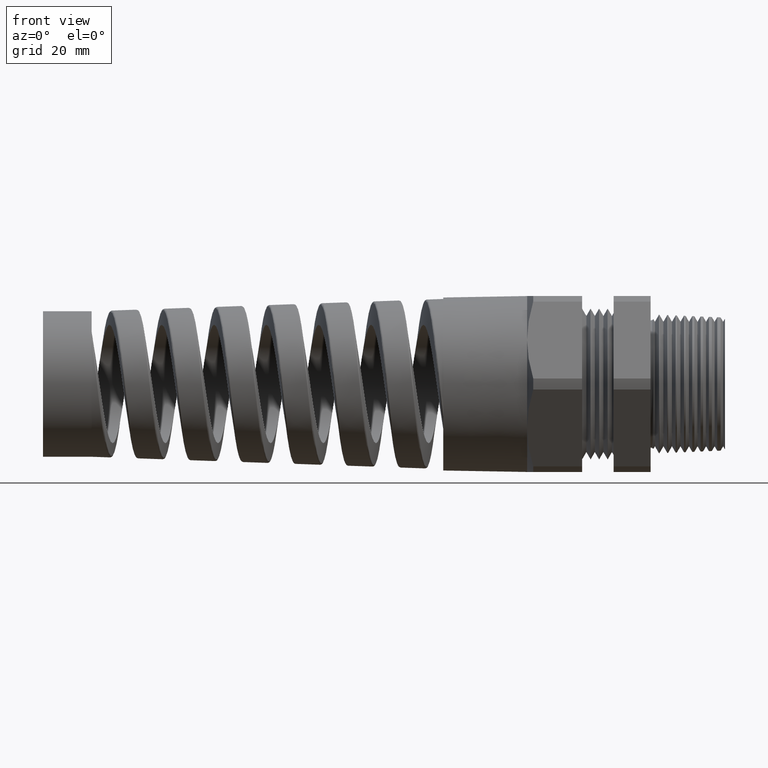
[diagram: clean part render]
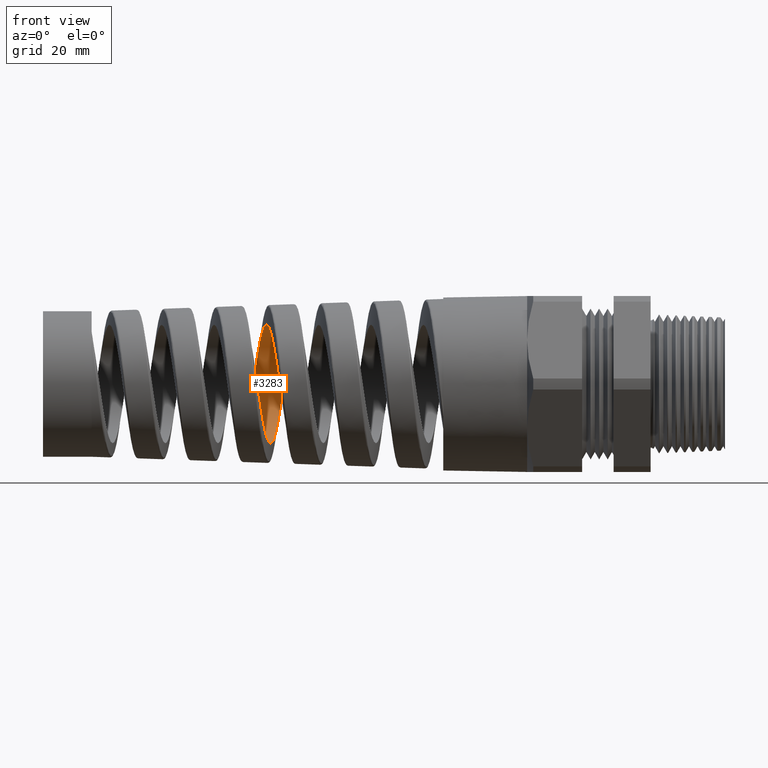
[diagram: same view with one face highlighted and labeled with its STEP entity id]
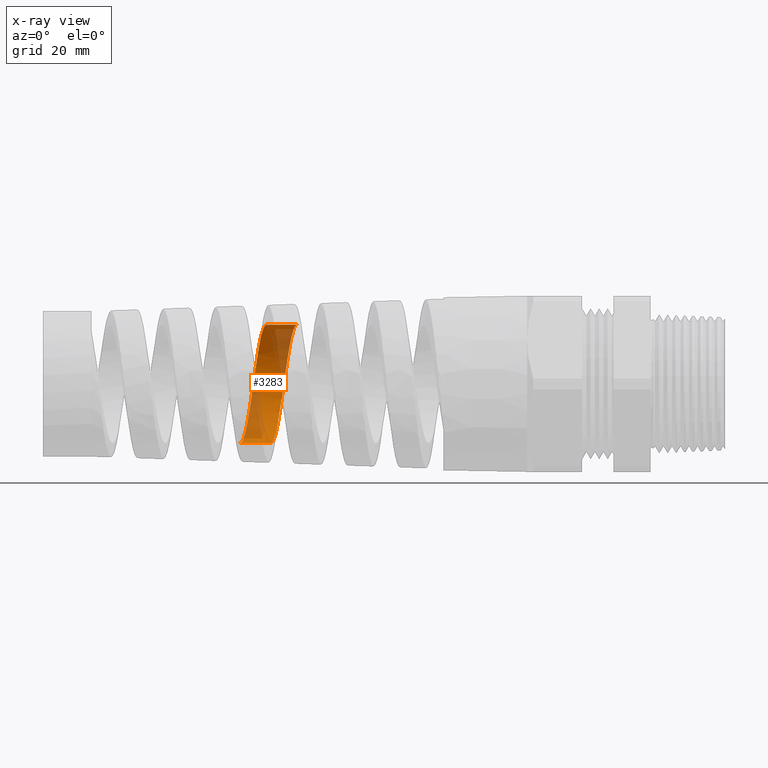
[diagram: x-ray of the same camera — body ghosted, the highlighted face saturated]
A machine part, front view. The second image highlights one B-rep face of the part: STEP entity #3283.
The next image is the same camera in x-ray: the body ghosted, the highlighted face saturated — about 39% of this face is hidden behind the body in this view.
In plain terms, the highlighted cylindrical surface (partial cylindrical patch) has radius 11.1145 mm, axis along (1, 0, 0).
Its self-contained STEP definition (entity closure, byte-faithful):
#1404 = VERTEX_POINT ( 'NONE', #6652 ) ;
#1410 = VERTEX_POINT ( 'NONE', #6597 ) ;
#3142 = VERTEX_POINT ( 'NONE', #10913 ) ;
#3149 = EDGE_CURVE ( 'NONE', #3142, #3151, #10905, .T. ) ;
#3151 = VERTEX_POINT ( 'NONE', #10998 ) ;
#3159 = EDGE_CURVE ( 'NONE', #1404, #1410, #11053, .T. ) ;
#3268 = EDGE_LOOP ( 'NONE', ( #3349, #3339, #3285, #3313 ) ) ;
#3283 = ADVANCED_FACE ( 'NONE', ( #11341 ), #11335, .F. ) ;
#3285 = ORIENTED_EDGE ( 'NONE', *, *, #3159, .T. ) ;
#3313 = ORIENTED_EDGE ( 'NONE', *, *, #3314, .F. ) ;
#3314 = EDGE_CURVE ( 'NONE', #3151, #1410, #11473, .T. ) ;
#3336 = EDGE_CURVE ( 'NONE', #1404, #3142, #11650, .T. ) ;
#3339 = ORIENTED_EDGE ( 'NONE', *, *, #3336, .F. ) ;
#3349 = ORIENTED_EDGE ( 'NONE', *, *, #3149, .F. ) ;
#6597 = CARTESIAN_POINT ( 'NONE',  ( -2.807672832263372600, -2.795875681015769600E-016, -0.4375801833083609600 ) ) ;
#6652 = CARTESIAN_POINT ( 'NONE',  ( -3.031966667347661700, -1.157351671028355200E-012, -0.4375801833083609600 ) ) ;
#10905 = LINE ( 'NONE', #11001, #11000 ) ;
#10913 = CARTESIAN_POINT ( 'NONE',  ( -2.838629872620518600, 1.110240098675117400E-014, 0.4375801833083615700 ) ) ;
#10998 = CARTESIAN_POINT ( 'NONE',  ( -2.613139241122711900, -6.691640317918164300E-014, 0.4375801833083615100 ) ) ;
#10999 = DIRECTION ( 'NONE',  ( 1.000000000000000000, 0.0000000000000000000, 0.0000000000000000000 ) ) ;
#11000 = VECTOR ( 'NONE', #10999, 39.37007874015748100 ) ;
#11001 = CARTESIAN_POINT ( 'NONE',  ( 0.4924815508901369000, 5.358811708588965500E-017, 0.4375801833083611800 ) ) ;
#11050 = DIRECTION ( 'NONE',  ( 1.000000000000000000, 0.0000000000000000000, 0.0000000000000000000 ) ) ;
#11051 = VECTOR ( 'NONE', #11050, 39.37007874015748100 ) ;
#11052 = CARTESIAN_POINT ( 'NONE',  ( 0.4924815508901369000, 0.0000000000000000000, -0.4375801833083611800 ) ) ;
#11053 = LINE ( 'NONE', #11052, #11051 ) ;
#11331 = DIRECTION ( 'NONE',  ( 0.0000000000000000000, 0.0000000000000000000, -1.000000000000000000 ) ) ;
#11332 = DIRECTION ( 'NONE',  ( 1.000000000000000000, 0.0000000000000000000, 0.0000000000000000000 ) ) ;
#11333 = CARTESIAN_POINT ( 'NONE',  ( 0.4924815508901369000, 0.0000000000000000000, 0.0000000000000000000 ) ) ;
#11334 = AXIS2_PLACEMENT_3D ( 'NONE', #11333, #11332, #11331 ) ;
#11335 = CYLINDRICAL_SURFACE ( 'NONE', #11334, 0.4375801833083611800 ) ;
#11341 = FACE_OUTER_BOUND ( 'NONE', #3268, .T. ) ;
#11455 = CARTESIAN_POINT ( 'NONE',  ( -2.673943279708155300, 0.3644553410325600500, 0.2434280205106386900 ) ) ;
#11456 = CARTESIAN_POINT ( 'NONE',  ( -2.669910389161955800, 0.3474744645753342600, 0.2663505491012353500 ) ) ;
#11457 = CARTESIAN_POINT ( 'NONE',  ( -2.665860037810033200, 0.3293333747774500600, 0.2884798897603439400 ) ) ;
#11458 = CARTESIAN_POINT ( 'NONE',  ( -2.663817642048238900, 0.3196387218226093300, 0.2991912217825463700 ) ) ;
#11459 = CARTESIAN_POINT ( 'NONE',  ( -2.657697437803621100, 0.2890560466967950800, 0.3297795477527077400 ) ) ;
#11460 = CARTESIAN_POINT ( 'NONE',  ( -2.653678691738002200, 0.2669732231774446500, 0.3478730654776477400 ) ) ;
#11461 = CARTESIAN_POINT ( 'NONE',  ( -2.647622242086508800, 0.2314005243280079800, 0.3716634268440999800 ) ) ;
#11462 = CARTESIAN_POINT ( 'NONE',  ( -2.645598931043411400, 0.2191319623625504200, 0.3790312980187986500 ) ) ;
#11463 = CARTESIAN_POINT ( 'NONE',  ( -2.641524754582273500, 0.1937529582512597900, 0.3926109180544564700 ) ) ;
#11464 = CARTESIAN_POINT ( 'NONE',  ( -2.639476641480146900, 0.1806531993436134600, 0.3988057426852693000 ) ) ;
#11465 = CARTESIAN_POINT ( 'NONE',  ( -2.633396789773852800, 0.1409503058000684500, 0.4152471025180795000 ) ) ;
#11466 = CARTESIAN_POINT ( 'NONE',  ( -2.629383356034304100, 0.1136716093560272300, 0.4235266664750928500 ) ) ;
#11467 = CARTESIAN_POINT ( 'NONE',  ( -2.623305242008179500, 0.07155678931911742300, 0.4319270268433628700 ) ) ;
#11469 = CARTESIAN_POINT ( 'NONE',  ( -2.621259364263914800, 0.05724498533232455500, 0.4340586976099883900 ) ) ;
#11470 = CARTESIAN_POINT ( 'NONE',  ( -2.617181603483568000, 0.02857241836257352200, 0.4368839184789152200 ) ) ;
#11471 = CARTESIAN_POINT ( 'NONE',  ( -2.615158021695545900, 0.01426935030650067600, 0.4375801833083632400 ) ) ;
#11472 = CARTESIAN_POINT ( 'NONE',  ( -2.613139241122711900, -6.691640317918164300E-014, 0.4375801833083615100 ) ) ;
#11473 = B_SPLINE_CURVE_WITH_KNOTS ( 'NONE', 3,
 ( #11472, #11471, #11470, #11469, #11467, #11466, #11465, #11464, #11463, #11462, #11461, #11460, #11459, #11458, #11457, #11456, #11455, #11541, #11540, #11539, #11538, #11537, #11536, #11535, #11534, #11533, #11532, #11531, #11530, #11529, #11528, #11527, #11526, #11525, #11524, #11523, #11522, #11521, #11520, #11519, #11518, #11517, #11516, #11515, #11514, #11513, #11512 ),
 .UNSPECIFIED., .F., .F.,
 ( 4, 2, 2, 2, 2, 2, 2, 2, 1, 2, 2, 2, 2, 2, 2, 2, 2, 2, 2, 2, 2, 2, 2, 4 ),
 ( 0.2461000974137510800, 0.2471969352347336800, 0.2482937730557162900, 0.2504874486976815300, 0.2515842865186641600, 0.2526811243396467300, 0.2548747999816119400, 0.2559716378025945800, 0.2570684756235771500, 0.2581653134445597900, 0.2592621512655423600, 0.2614558269075075700, 0.2625526647284901500, 0.2636495025494727800, 0.2658431781914379900, 0.2669400160124205700, 0.2680368538334032000, 0.2702305294753683500, 0.2724242051173335600, 0.2735210429383161400, 0.2746178807592987700, 0.2768115564012639800, 0.2790052320432291300, 0.2811989076851943400 ),
 .UNSPECIFIED. ) ;
#11512 = CARTESIAN_POINT ( 'NONE',  ( -2.807672832263372600, -2.795875681015769600E-016, -0.4375801833083609600 ) ) ;
#11513 = CARTESIAN_POINT ( 'NONE',  ( -2.803607762248677900, 0.02872124390136605200, -0.4375801833083611800 ) ) ;
#11514 = CARTESIAN_POINT ( 'NONE',  ( -2.799590814173677200, 0.05709967144915616100, -0.4347788572350065300 ) ) ;
#11515 = CARTESIAN_POINT ( 'NONE',  ( -2.791505033385405000, 0.1131604506087371400, -0.4236599339047856800 ) ) ;
#11516 = CARTESIAN_POINT ( 'NONE',  ( -2.787400085736983200, 0.1410579036183789700, -0.4152056754304241900 ) ) ;
#11517 = CARTESIAN_POINT ( 'NONE',  ( -2.779310177048935200, 0.1938617894714848300, -0.3933328001397292700 ) ) ;
#11518 = CARTESIAN_POINT ( 'NONE',  ( -2.775294173260497200, 0.2190207856655433400, -0.3799093411971437000 ) ) ;
#11519 = CARTESIAN_POINT ( 'NONE',  ( -2.769199544618875300, 0.2548525690615755000, -0.3559954826700039700 ) ) ;
#11520 = CARTESIAN_POINT ( 'NONE',  ( -2.767148183466805900, 0.2665143015144025300, -0.3473506724378036500 ) ) ;
#11521 = CARTESIAN_POINT ( 'NONE',  ( -2.763086590672521000, 0.2887004445276953300, -0.3291419388109259600 ) ) ;
#11522 = CARTESIAN_POINT ( 'NONE',  ( -2.761066968281428800, 0.2992831606396638100, -0.3195453244018675600 ) ) ;
#11523 = CARTESIAN_POINT ( 'NONE',  ( -2.755013650339742400, 0.3295277901402681200, -0.2893107039343363300 ) ) ;
#11524 = CARTESIAN_POINT ( 'NONE',  ( -2.750981237259825900, 0.3477293092156310500, -0.2671990032910812600 ) ) ;
#11525 = CARTESIAN_POINT ( 'NONE',  ( -2.742806860143962600, 0.3798388181248171200, -0.2191653533131307200 ) ) ;
#11526 = CARTESIAN_POINT ( 'NONE',  ( -2.738783150130659600, 0.3932809352918996700, -0.1939582408116075600 ) ) ;
#11527 = CARTESIAN_POINT ( 'NONE',  ( -2.732728302834671400, 0.4096666948386392700, -0.1544439544586343700 ) ) ;
#11528 = CARTESIAN_POINT ( 'NONE',  ( -2.730707528244782800, 0.4144945512280970900, -0.1409864463987044700 ) ) ;
#11529 = CARTESIAN_POINT ( 'NONE',  ( -2.726641355214428400, 0.4228513751711251400, -0.1134884380974758000 ) ) ;
#11530 = CARTESIAN_POINT ( 'NONE',  ( -2.724590798247080500, 0.4263794723513191800, -0.09941146988692710400 ) ) ;
#11531 = CARTESIAN_POINT ( 'NONE',  ( -2.718503366763587200, 0.4347709354047545300, -0.05721330619193578500 ) ) ;
#11532 = CARTESIAN_POINT ( 'NONE',  ( -2.714486937747546200, 0.4375644626025220800, -0.02884054132670062600 ) ) ;
#11533 = CARTESIAN_POINT ( 'NONE',  ( -2.708414971551127400, 0.4375879453348391300, 0.01406099765063110200 ) ) ;
#11534 = CARTESIAN_POINT ( 'NONE',  ( -2.706377234980444700, 0.4368918084916917900, 0.02846435203401966400 ) ) ;
#11535 = CARTESIAN_POINT ( 'NONE',  ( -2.702293926259734300, 0.4340670682649382900, 0.05718786507414804600 ) ) ;
#11536 = CARTESIAN_POINT ( 'NONE',  ( -2.700268127192778400, 0.4319569697254903000, 0.07136846619436473800 ) ) ;
#11537 = CARTESIAN_POINT ( 'NONE',  ( -2.694207136923372200, 0.4235999524515450300, 0.1133797003699059800 ) ) ;
#11538 = CARTESIAN_POINT ( 'NONE',  ( -2.690187873850768500, 0.4153449995690645100, 0.1406846082284525800 ) ) ;
#11539 = CARTESIAN_POINT ( 'NONE',  ( -2.684082892779006400, 0.3988543217807344300, 0.1805504071715690100 ) ) ;
#11540 = CARTESIAN_POINT ( 'NONE',  ( -2.682033483891568700, 0.3926536803663556700, 0.1936618900229300200 ) ) ;
#11541 = CARTESIAN_POINT ( 'NONE',  ( -2.677978044180873200, 0.3791391765474438900, 0.2189413737954154200 ) ) ;
#11629 = CARTESIAN_POINT ( 'NONE',  ( -2.955431540759426000, 0.4145982129634375700, -0.1406811216140588800 ) ) ;
#11630 = CARTESIAN_POINT ( 'NONE',  ( -2.957470883976690300, 0.4097062155990251500, -0.1543470891335608500 ) ) ;
#11631 = CARTESIAN_POINT ( 'NONE',  ( -2.963522778349801700, 0.3932228382329087100, -0.1941014608843300300 ) ) ;
#11632 = CARTESIAN_POINT ( 'NONE',  ( -2.967512084743477300, 0.3797721067407001100, -0.2192430539793999200 ) ) ;
#11633 = CARTESIAN_POINT ( 'NONE',  ( -2.973546048186300100, 0.3559460941325006700, -0.2549181891000956700 ) ) ;
#11634 = CARTESIAN_POINT ( 'NONE',  ( -2.975571221467568700, 0.3473659458390698800, -0.2664989872075403900 ) ) ;
#11635 = CARTESIAN_POINT ( 'NONE',  ( -2.979632652103575200, 0.3290460746297632100, -0.2888139388638654700 ) ) ;
#11636 = CARTESIAN_POINT ( 'NONE',  ( -2.981647002030014500, 0.3194071998801906200, -0.2994317916672001900 ) ) ;
#11637 = CARTESIAN_POINT ( 'NONE',  ( -2.987671230323458700, 0.2891023138061766300, -0.3297150746701052500 ) ) ;
#11638 = CARTESIAN_POINT ( 'NONE',  ( -2.991662762929626400, 0.2670608077279372200, -0.3478246057490219100 ) ) ;
#11639 = CARTESIAN_POINT ( 'NONE',  ( -2.997730521076944500, 0.2311968391231485100, -0.3717945562333979700 ) ) ;
#11640 = CARTESIAN_POINT ( 'NONE',  ( -2.999769113306389700, 0.2187510069450018200, -0.3792491747502664300 ) ) ;
#11641 = CARTESIAN_POINT ( 'NONE',  ( -3.003802127522041200, 0.1934585260489418400, -0.3927540429927884900 ) ) ;
#11642 = CARTESIAN_POINT ( 'NONE',  ( -3.005807450239930600, 0.1805473451072257500, -0.3988511742667829000 ) ) ;
#11643 = CARTESIAN_POINT ( 'NONE',  ( -3.009816030337270700, 0.1542066629571479400, -0.4097559128784839500 ) ) ;
#11644 = CARTESIAN_POINT ( 'NONE',  ( -3.011819235601438400, 0.1407771478990725900, -0.4145635054968230300 ) ) ;
#11645 = CARTESIAN_POINT ( 'NONE',  ( -3.015843176053195900, 0.1133966362556743100, -0.4228738681289139200 ) ) ;
#11646 = CARTESIAN_POINT ( 'NONE',  ( -3.017872050995134000, 0.09938861333721063500, -0.4263875346562529500 ) ) ;
#11647 = CARTESIAN_POINT ( 'NONE',  ( -3.023958560072964400, 0.05694993846225055600, -0.4348162355776653000 ) ) ;
#11648 = CARTESIAN_POINT ( 'NONE',  ( -3.027954972463935000, 0.02853094462827397700, -0.4375801833084367900 ) ) ;
#11649 = CARTESIAN_POINT ( 'NONE',  ( -3.031966667347661700, -1.157351671028355200E-012, -0.4375801833083609600 ) ) ;
#11650 = B_SPLINE_CURVE_WITH_KNOTS ( 'NONE', 3,
 ( #11649, #11648, #11647, #11646, #11645, #11644, #11643, #11642, #11641, #11640, #11639, #11638, #11637, #11636, #11635, #11634, #11633, #11632, #11631, #11630, #11629, #11705, #11704, #11703, #11702, #11701, #11700, #11699, #11698, #11697, #11696, #11695, #11694, #11693, #11692, #11691, #11690, #11689, #11688, #11687, #11686, #11685, #11684, #11683, #11682, #11681 ),
 .UNSPECIFIED., .F., .F.,
 ( 4, 2, 2, 2, 2, 2, 2, 2, 2, 2, 2, 2, 2, 2, 2, 2, 2, 2, 2, 2, 2, 2, 4 ),
 ( 0.1992993950402950900, 0.2014912655880172800, 0.2025872008618783700, 0.2036831361357394600, 0.2047790714096005500, 0.2058750066834616500, 0.2080668772311838300, 0.2091628125050449300, 0.2102587477789060200, 0.2124506183266281800, 0.2135465536004892700, 0.2146424888743503600, 0.2168343594220725200, 0.2190262299697947100, 0.2201221652436557700, 0.2212181005175168600, 0.2234099710652390200, 0.2256018416129612100, 0.2277937121606833600, 0.2288896474345444600, 0.2299855827084055500, 0.2321774532561277400, 0.2343693238038499200 ),
 .UNSPECIFIED. ) ;
#11681 = CARTESIAN_POINT ( 'NONE',  ( -2.838629872620518600, 1.110240098675117400E-014, 0.4375801833083615700 ) ) ;
#11682 = CARTESIAN_POINT ( 'NONE',  ( -2.842642250510631500, 0.02852298603910491700, 0.4375801833083602900 ) ) ;
#11683 = CARTESIAN_POINT ( 'NONE',  ( -2.846640289079462400, 0.05695423212836313300, 0.4348179163516532900 ) ) ;
#11684 = CARTESIAN_POINT ( 'NONE',  ( -2.854761522529538200, 0.1136044562113046700, 0.4235616040986939200 ) ) ;
#11685 = CARTESIAN_POINT ( 'NONE',  ( -2.858774380069975000, 0.1410319844474161600, 0.4152099375700894500 ) ) ;
#11686 = CARTESIAN_POINT ( 'NONE',  ( -2.864790622778154100, 0.1805467573305768500, 0.3988514877232898200 ) ) ;
#11687 = CARTESIAN_POINT ( 'NONE',  ( -2.866797589223739200, 0.1934637857955320000, 0.3927518811072325800 ) ) ;
#11688 = CARTESIAN_POINT ( 'NONE',  ( -2.870832863856922900, 0.2187764531648521700, 0.3792349404633181300 ) ) ;
#11689 = CARTESIAN_POINT ( 'NONE',  ( -2.872871432872039500, 0.2312289193637309100, 0.3717740841176771500 ) ) ;
#11690 = CARTESIAN_POINT ( 'NONE',  ( -2.878931314804555000, 0.2670579029317883800, 0.3478246068002727700 ) ) ;
#11691 = CARTESIAN_POINT ( 'NONE',  ( -2.882923764403021200, 0.2890962293388472100, 0.3297215685149146300 ) ) ;
#11692 = CARTESIAN_POINT ( 'NONE',  ( -2.890963121431836300, 0.3295212534180503900, 0.2893245342304587300 ) ) ;
#11693 = CARTESIAN_POINT ( 'NONE',  ( -2.895042283860591100, 0.3480174992888847600, 0.2667907034836166600 ) ) ;
#11694 = CARTESIAN_POINT ( 'NONE',  ( -2.903081218940172000, 0.3797670162982643700, 0.2192497950021523300 ) ) ;
#11695 = CARTESIAN_POINT ( 'NONE',  ( -2.907073897790909600, 0.3932221499268135400, 0.1941064754673688100 ) ) ;
#11696 = CARTESIAN_POINT ( 'NONE',  ( -2.913132513054566000, 0.4097178114623013000, 0.1543174434130299100 ) ) ;
#11697 = CARTESIAN_POINT ( 'NONE',  ( -2.915171504851678200, 0.4146090103926920500, 0.1406479877359791700 ) ) ;
#11698 = CARTESIAN_POINT ( 'NONE',  ( -2.919208438948254400, 0.4229357720940739600, 0.1131716423675876200 ) ) ;
#11699 = CARTESIAN_POINT ( 'NONE',  ( -2.921215150750837300, 0.4264005254187348000, 0.09930896327937598100 ) ) ;
#11700 = CARTESIAN_POINT ( 'NONE',  ( -2.927230004578455200, 0.4347406155910225600, 0.05735904238210976600 ) ) ;
#11701 = CARTESIAN_POINT ( 'NONE',  ( -2.931237944858380300, 0.4375815924882506300, 0.02887819405442531400 ) ) ;
#11702 = CARTESIAN_POINT ( 'NONE',  ( -2.939366664907014500, 0.4375787730872824900, -0.02892088380093323400 ) ) ;
#11703 = CARTESIAN_POINT ( 'NONE',  ( -2.943363990872213800, 0.4347417657542341800, -0.05735294194923595800 ) ) ;
#11704 = CARTESIAN_POINT ( 'NONE',  ( -2.949380437958734700, 0.4264002261723679500, -0.09931062606097725000 ) ) ;
#11705 = CARTESIAN_POINT ( 'NONE',  ( -2.951389108546016900, 0.4229337946837384800, -0.1131806586192132800 ) ) ;